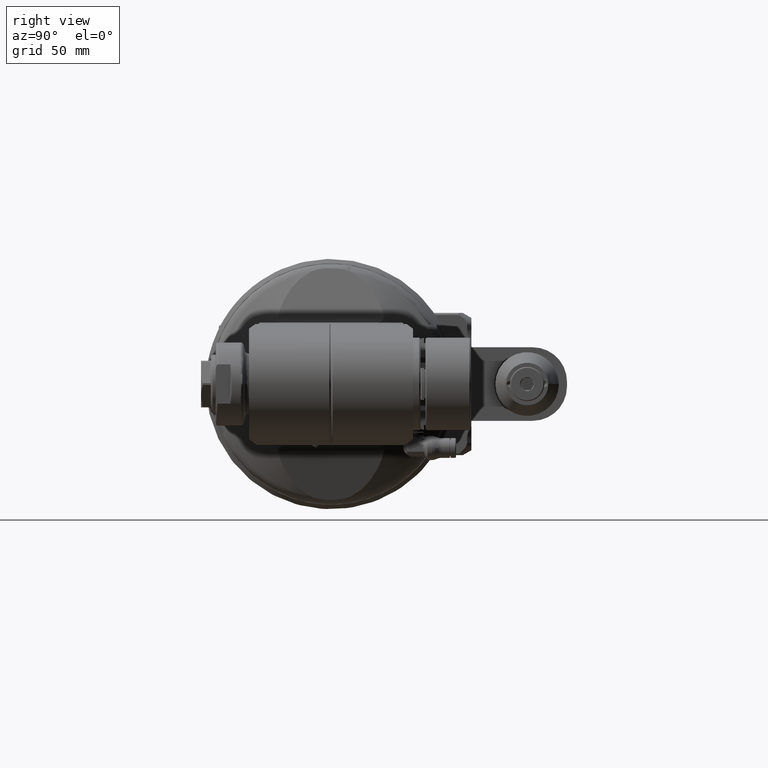
[diagram: clean part render]
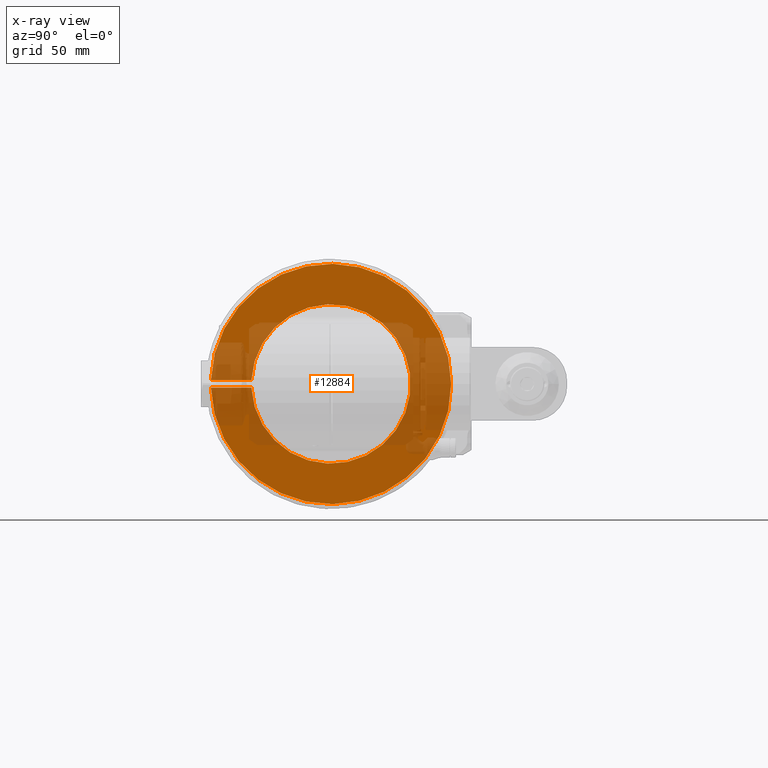
[diagram: x-ray — body ghosted, one internal face saturated and labeled with its STEP entity id]
A machine part, right view, then the same camera in x-ray: the body is ghosted and one INTERNAL B-rep face — a face not visible from any outside direction — is saturated and labeled: STEP entity #12884.
In plain terms, the highlighted planar face has unit normal (1, 0, -0).
Its self-contained STEP definition (entity closure, byte-faithful):
#1303=LINE('',#21814,#2156);
#1308=LINE('',#21848,#2161);
#2156=VECTOR('',#16983,16.51166927349);
#2161=VECTOR('',#16994,16.51166927349);
#3186=FACE_OUTER_BOUND('',#4057,.T.);
#4057=EDGE_LOOP('',(#10481,#10482,#10483,#10484));
#4835=CIRCLE('',#14154,49.);
#4838=CIRCLE('',#14159,32.5);
#5813=VERTEX_POINT('',#21803);
#5814=VERTEX_POINT('',#21807);
#5815=VERTEX_POINT('',#21813);
#5823=VERTEX_POINT('',#21847);
#7452=EDGE_CURVE('',#5814,#5813,#4835,.T.);
#7454=EDGE_CURVE('',#5815,#5814,#1303,.T.);
#7463=EDGE_CURVE('',#5813,#5823,#1308,.T.);
#7464=EDGE_CURVE('',#5823,#5815,#4838,.T.);
#10481=ORIENTED_EDGE('',*,*,#7452,.T.);
#10482=ORIENTED_EDGE('',*,*,#7463,.T.);
#10483=ORIENTED_EDGE('',*,*,#7464,.T.);
#10484=ORIENTED_EDGE('',*,*,#7454,.T.);
#12259=PLANE('',#14158);
#12884=ADVANCED_FACE('',(#3186),#12259,.T.);
#14154=AXIS2_PLACEMENT_3D('',#21808,#16979,#16980);
#14158=AXIS2_PLACEMENT_3D('',#21846,#16992,#16993);
#14159=AXIS2_PLACEMENT_3D('',#21849,#16995,#16996);
#16979=DIRECTION('center_axis',(1.,0.,0.));
#16980=DIRECTION('ref_axis',(0.,1.,0.));
#16983=DIRECTION('',(0.,-1.,0.));
#16992=DIRECTION('center_axis',(1.,0.,0.));
#16993=DIRECTION('ref_axis',(0.,-1.,0.));
#16994=DIRECTION('',(0.,1.,0.));
#16995=DIRECTION('center_axis',(-1.,0.,0.));
#16996=DIRECTION('ref_axis',(0.,-0.998934343430642,0.0461538461538519));
#21803=CARTESIAN_POINT('',(0.,-48.97703543499,1.5));
#21807=CARTESIAN_POINT('',(0.,-48.97703543499,-1.5));
#21808=CARTESIAN_POINT('Origin',(0.,0.,0.));
#21813=CARTESIAN_POINT('',(0.,-32.4653661615,-1.5));
#21814=CARTESIAN_POINT('',(0.,-32.4653661615,-1.5));
#21846=CARTESIAN_POINT('Origin',(0.,-49.13074005203,0.));
#21847=CARTESIAN_POINT('',(0.,-32.4653661615,1.5));
#21848=CARTESIAN_POINT('',(0.,-48.97703543499,1.5));
#21849=CARTESIAN_POINT('Origin',(0.,0.,0.));